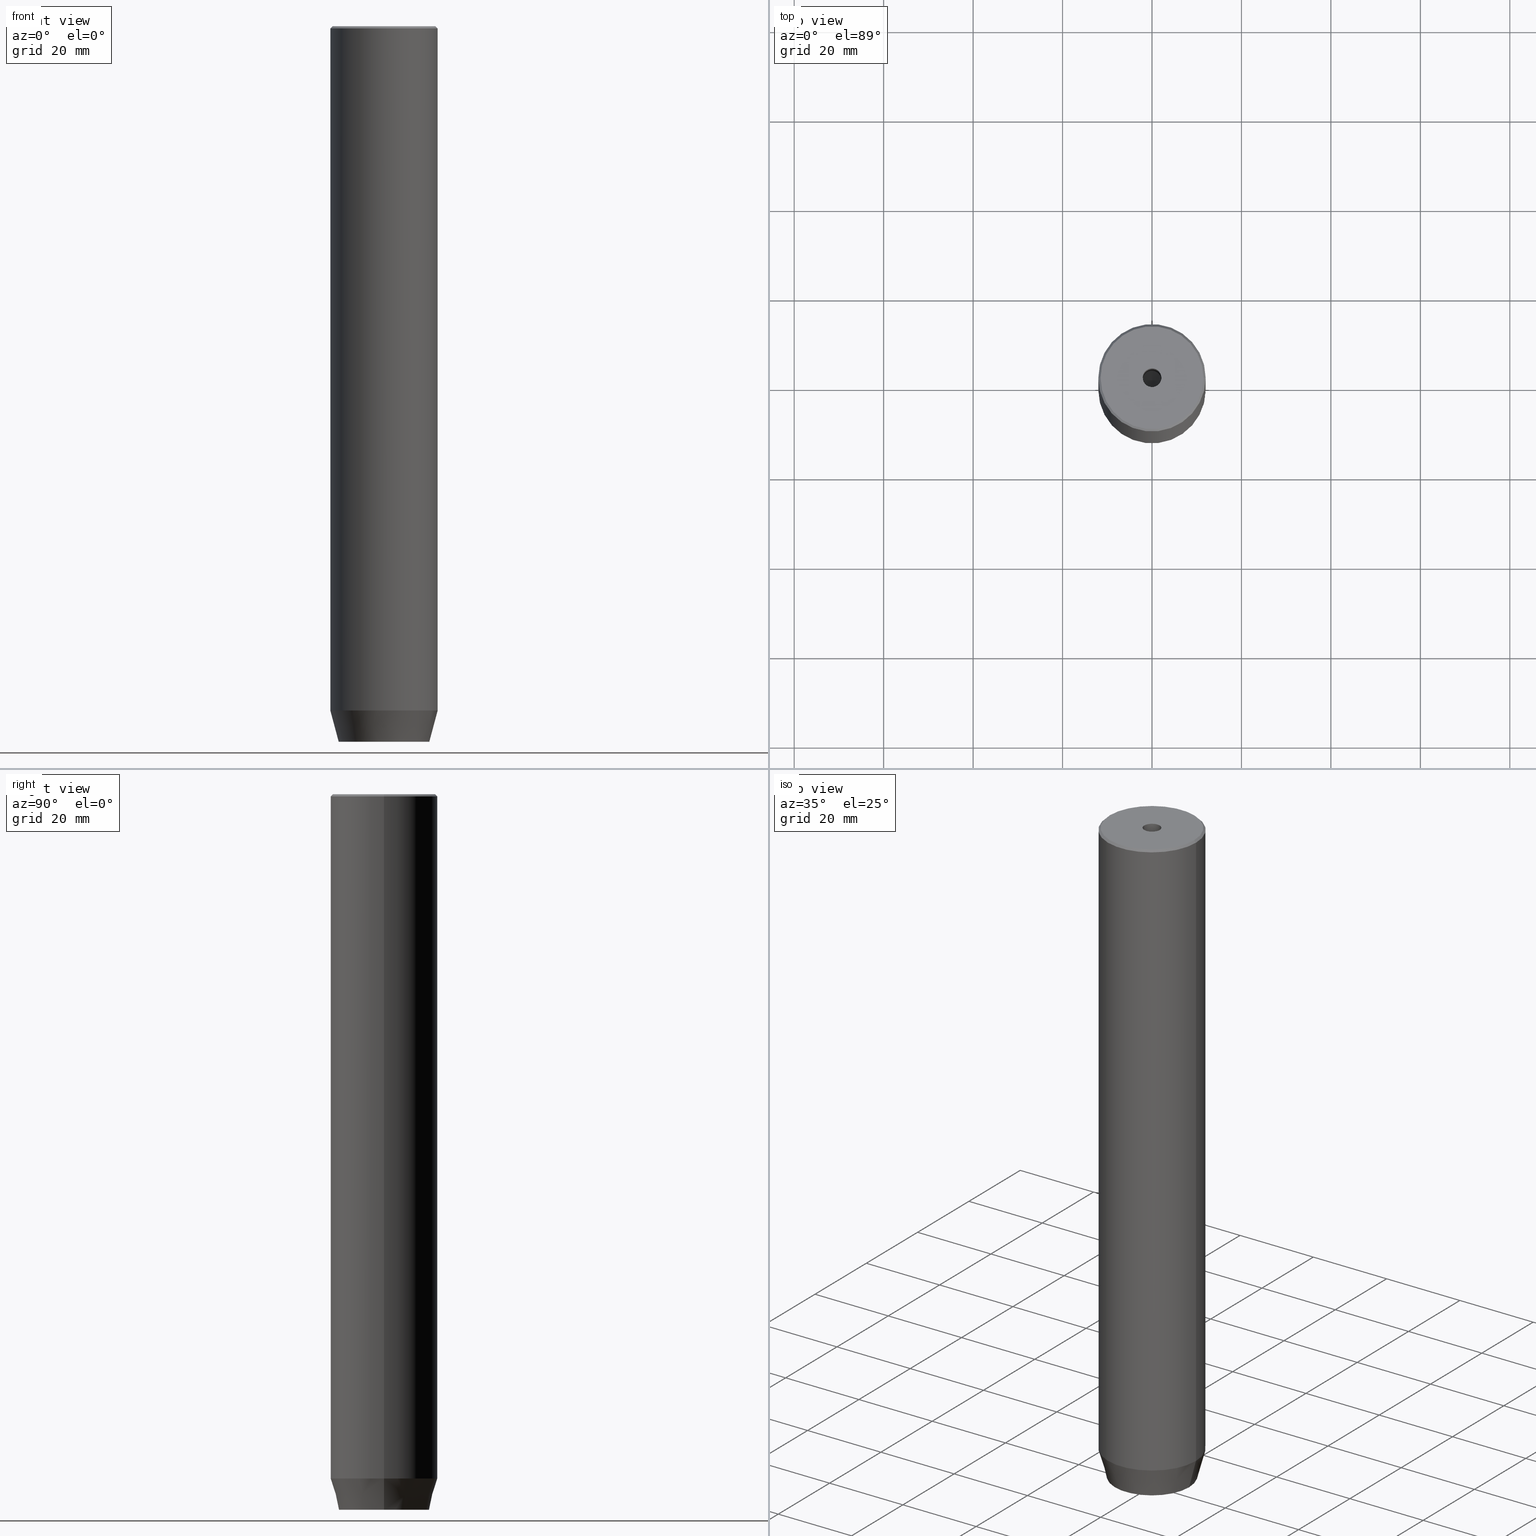
[diagram: canonical four-view strip — front | top / right | iso, engineering-drawing reading convention]
A machine part, canonical four-view strip (front | top / right | iso — engineering-drawing reading convention). The complete STEP part file that produces these views, byte-faithful:
ISO-10303-21;
HEADER;
FILE_DESCRIPTION (( 'STEP AP203' ),
    '1' );
FILE_NAME ('22c5.STEP',
    '2024-01-02T17:15:24',
    ( '' ),
    ( '' ),
    'SwSTEP 2.0',
    'SolidWorks 2019',
    '' );
FILE_SCHEMA (( 'CONFIG_CONTROL_DESIGN' ));
ENDSEC;

DATA;
#1 = ORIENTED_EDGE ( 'NONE', *, *, #222, .T. ) ;
#2 = EDGE_CURVE ( 'NONE', #234, #451, #333, .T. ) ;
#3 = PERSON_AND_ORGANIZATION_ROLE ( 'classification_officer' ) ;
#4 = AXIS2_PLACEMENT_3D ( 'NONE', #95, #8, #310 ) ;
#5 = CC_DESIGN_APPROVAL ( #446, ( #303 ) ) ;
#6 = EDGE_CURVE ( 'NONE', #458, #558, #79, .T. ) ;
#7 = ORIENTED_EDGE ( 'NONE', *, *, #267, .F. ) ;
#8 = DIRECTION ( 'NONE',  ( -1.000000000000000000, 0.000000000000000000, 0.000000000000000000 ) ) ;
#9 = EDGE_CURVE ( 'NONE', #199, #554, #257, .T. ) ;
#10 = EDGE_LOOP ( 'NONE', ( #500, #417, #93, #120 ) ) ;
#11 = CARTESIAN_POINT ( 'NONE',  ( 0.000000000000000000, 10.12435565298212836, -160.0000000000000000 ) ) ;
#12 = VERTEX_POINT ( 'NONE', #170 ) ;
#13 = CC_DESIGN_PERSON_AND_ORGANIZATION_ASSIGNMENT ( #125, #44, ( #303 ) ) ;
#14 = DIRECTION ( 'NONE',  ( 1.000000000000000000, 0.000000000000000000, 0.000000000000000000 ) ) ;
#15 = AXIS2_PLACEMENT_3D ( 'NONE', #511, #227, #17 ) ;
#16 = ORIENTED_EDGE ( 'NONE', *, *, #179, .F. ) ;
#17 = DIRECTION ( 'NONE',  ( 1.000000000000000000, 0.000000000000000000, 0.000000000000000000 ) ) ;
#18 = CARTESIAN_POINT ( 'NONE',  ( 0.000000000000000000, 0.000000000000000000, 0.000000000000000000 ) ) ;
#19 = ORIENTED_EDGE ( 'NONE', *, *, #516, .T. ) ;
#20 = LINE ( 'NONE', #509, #352 ) ;
#21 = CARTESIAN_POINT ( 'NONE',  ( 0.000000000000000000, 0.000000000000000000, 0.000000000000000000 ) ) ;
#22 = CIRCLE ( 'NONE', #155, 11.50000000000002309 ) ;
#23 = LOCAL_TIME ( 18, 15, 24.00000000000000000, #297 ) ;
#24 = CLOSED_SHELL ( 'NONE', ( #457, #207, #213, #169, #292, #411, #580, #400, #101, #232, #201, #322, #134, #196, #57, #138, #298, #564, #140 ) ) ;
#25 = ORIENTED_EDGE ( 'NONE', *, *, #212, .F. ) ;
#26 = CARTESIAN_POINT ( 'NONE',  ( 0.000000000000000000, 0.000000000000000000, -0.4999999999999779066 ) ) ;
#27 = CYLINDRICAL_SURFACE ( 'NONE', #185, 2.099999999999996980 ) ;
#28 = CARTESIAN_POINT ( 'NONE',  ( -7.656934449090954900E-15, 0.000000000000000000, -31.26180729995787289 ) ) ;
#29 = DIRECTION ( 'NONE',  ( 0.2588190451025212391, 0.000000000000000000, 0.9659258262890680902 ) ) ;
#30 = CARTESIAN_POINT ( 'NONE',  ( 0.000000000000000000, 0.000000000000000000, -30.00000000000000000 ) ) ;
#31 = CARTESIAN_POINT ( 'NONE',  ( -4.000000000000000000, -2.309401076758503368, -157.2000000000000171 ) ) ;
#32 = VECTOR ( 'NONE', #29, 1000.000000000000114 ) ;
#33 = CARTESIAN_POINT ( 'NONE',  ( 11.50000000000002309, 1.408343819019458937E-15, 0.000000000000000000 ) ) ;
#34 = FACE_OUTER_BOUND ( 'NONE', #203, .T. ) ;
#35 = LINE ( 'NONE', #62, #176 ) ;
#36 = PERSON_AND_ORGANIZATION ( #330, #281 ) ;
#37 = PRODUCT_DEFINITION ( 'NEZN�M�', '', #303, #225 ) ;
#38 = LINE ( 'NONE', #431, #445 ) ;
#39 = DATE_TIME_ROLE ( 'classification_date' ) ;
#40 = CC_DESIGN_APPROVAL ( #318, ( #37 ) ) ;
#41 = VECTOR ( 'NONE', #433, 1000.000000000000000 ) ;
#42 = SECURITY_CLASSIFICATION_LEVEL ( 'unclassified' ) ;
#43 = DIRECTION ( 'NONE',  ( 0.8660254037844387076, 0.5000000000000001110, 0.000000000000000000 ) ) ;
#44 = PERSON_AND_ORGANIZATION_ROLE ( 'design_supplier' ) ;
#45 = EDGE_LOOP ( 'NONE', ( #121, #98, #438, #160 ) ) ;
#46 = EDGE_LOOP ( 'NONE', ( #7, #61, #477 ) ) ;
#47 = DIRECTION ( 'NONE',  ( -0.000000000000000000, -0.000000000000000000, -1.000000000000000000 ) ) ;
#48 = CARTESIAN_POINT ( 'NONE',  ( 0.000000000000000000, 0.000000000000000000, 0.000000000000000000 ) ) ;
#49 = ORIENTED_EDGE ( 'NONE', *, *, #340, .F. ) ;
#50 = PRODUCT_DEFINITION_SHAPE ( 'NONE', 'NONE',  #37 ) ;
#51 = CARTESIAN_POINT ( 'NONE',  ( 2.000000000000000888, -3.464101615137754386, -157.2000000000000171 ) ) ;
#52 = VERTEX_POINT ( 'NONE', #441 ) ;
#53 = PLANE ( 'NONE',  #574 ) ;
#54 = ORIENTED_EDGE ( 'NONE', *, *, #112, .T. ) ;
#55 = VECTOR ( 'NONE', #565, 1000.000000000000000 ) ;
#56 = ORIENTED_EDGE ( 'NONE', *, *, #9, .F. ) ;
#57 = ADVANCED_FACE ( 'NONE', ( #168 ), #371, .F. ) ;
#58 = DIRECTION ( 'NONE',  ( -0.000000000000000000, -0.000000000000000000, -1.000000000000000000 ) ) ;
#59 = DIRECTION ( 'NONE',  ( 1.000000000000000000, 0.000000000000000000, 0.000000000000000000 ) ) ;
#60 = EDGE_CURVE ( 'NONE', #583, #458, #381, .T. ) ;
#61 = ORIENTED_EDGE ( 'NONE', *, *, #9, .T. ) ;
#62 = CARTESIAN_POINT ( 'NONE',  ( -4.000000000000000000, 0.000000000000000000, -160.0000000000000000 ) ) ;
#63 = LINE ( 'NONE', #244, #404 ) ;
#64 = EDGE_CURVE ( 'NONE', #226, #541, #582, .T. ) ;
#65 = AXIS2_PLACEMENT_3D ( 'NONE', #421, #424, #59 ) ;
#66 = PLANE ( 'NONE',  #65 ) ;
#67 = FACE_OUTER_BOUND ( 'NONE', #10, .T. ) ;
#68 = EDGE_CURVE ( 'NONE', #451, #108, #350, .T. ) ;
#69 = ORIENTED_EDGE ( 'NONE', *, *, #68, .T. ) ;
#70 = FACE_BOUND ( 'NONE', #432, .T. ) ;
#71 = DIRECTION ( 'NONE',  ( -0.5000000000000000000, 0.8660254037844387076, 0.000000000000000000 ) ) ;
#72 = VECTOR ( 'NONE', #456, 1000.000000000000114 ) ;
#73 = VECTOR ( 'NONE', #523, 1000.000000000000114 ) ;
#74 = COORDINATED_UNIVERSAL_TIME_OFFSET ( 1, 0, .AHEAD. ) ;
#75 = EDGE_CURVE ( 'NONE', #12, #240, #553, .T. ) ;
#76 = ORIENTED_EDGE ( 'NONE', *, *, #496, .F. ) ;
#77 = DIRECTION ( 'NONE',  ( 0.000000000000000000, 0.000000000000000000, 1.000000000000000000 ) ) ;
#78 = APPROVAL_ROLE ( '' ) ;
#79 = CIRCLE ( 'NONE', #341, 12.00000000000000000 ) ;
#80 = FACE_OUTER_BOUND ( 'NONE', #308, .T. ) ;
#81 = ORIENTED_EDGE ( 'NONE', *, *, #454, .T. ) ;
#82 = EDGE_CURVE ( 'NONE', #532, #320, #397, .T. ) ;
#83 = ORIENTED_EDGE ( 'NONE', *, *, #278, .T. ) ;
#84 = VECTOR ( 'NONE', #188, 1000.000000000000000 ) ;
#85 = CARTESIAN_POINT ( 'NONE',  ( 0.000000000000000000, 0.000000000000000000, 0.000000000000000000 ) ) ;
#86 = CC_DESIGN_PERSON_AND_ORGANIZATION_ASSIGNMENT ( #130, #127, ( #284 ) ) ;
#87 = ORIENTED_EDGE ( 'NONE', *, *, #309, .F. ) ;
#88 = CARTESIAN_POINT ( 'NONE',  ( 12.00000000000000000, 0.000000000000000000, -0.4999999999999779066 ) ) ;
#89 = UNCERTAINTY_MEASURE_WITH_UNIT (LENGTH_MEASURE( 1.000000000000000082E-05 ), #231, 'distance_accuracy_value', 'NONE');
#90 = EDGE_CURVE ( 'NONE', #108, #581, #35, .T. ) ;
#91 = ORIENTED_EDGE ( 'NONE', *, *, #488, .T. ) ;
#92 = DIRECTION ( 'NONE',  ( -0.8660254037844384856, 0.5000000000000002220, 0.000000000000000000 ) ) ;
#93 = ORIENTED_EDGE ( 'NONE', *, *, #398, .T. ) ;
#94 = DIRECTION ( 'NONE',  ( -0.000000000000000000, -0.000000000000000000, 1.000000000000000000 ) ) ;
#95 = CARTESIAN_POINT ( 'NONE',  ( -4.000000000000000000, 0.000000000000000000, -157.2000000000000171 ) ) ;
#96 = AXIS2_PLACEMENT_3D ( 'NONE', #116, #434, #475 ) ;
#97 = VECTOR ( 'NONE', #158, 1000.000000000000000 ) ;
#98 = ORIENTED_EDGE ( 'NONE', *, *, #548, .T. ) ;
#99 = CARTESIAN_POINT ( 'NONE',  ( 4.000000000000000000, 2.309401076758503368, -157.2000000000000171 ) ) ;
#100 = DIRECTION ( 'NONE',  ( -0.000000000000000000, -0.000000000000000000, 1.000000000000000000 ) ) ;
#101 = ADVANCED_FACE ( 'NONE', ( #104 ), #472, .T. ) ;
#102 = CARTESIAN_POINT ( 'NONE',  ( -2.099999999999996980, 2.571758278209438013E-16, 0.000000000000000000 ) ) ;
#103 = ORIENTED_EDGE ( 'NONE', *, *, #68, .F. ) ;
#104 = FACE_OUTER_BOUND ( 'NONE', #45, .T. ) ;
#105 = CARTESIAN_POINT ( 'NONE',  ( 2.099999999999994760, 0.000000000000000000, -30.00000000000000000 ) ) ;
#106 = CARTESIAN_POINT ( 'NONE',  ( 4.000000000000000000, 2.309401076758503368, -160.0000000000000000 ) ) ;
#107 = AXIS2_PLACEMENT_3D ( 'NONE', #416, #560, #14 ) ;
#108 = VERTEX_POINT ( 'NONE', #259 ) ;
#109 = CARTESIAN_POINT ( 'NONE',  ( 2.000000000000000888, -3.464101615137754386, -157.2000000000000171 ) ) ;
#110 = AXIS2_PLACEMENT_3D ( 'NONE', #384, #571, #113 ) ;
#111 = CARTESIAN_POINT ( 'NONE',  ( -2.099999999999994760, 2.571758278209435054E-16, -30.00000000000000000 ) ) ;
#112 = EDGE_CURVE ( 'NONE', #558, #458, #414, .T. ) ;
#113 = DIRECTION ( 'NONE',  ( 1.000000000000000000, 0.000000000000000000, 0.000000000000000000 ) ) ;
#114 = DIRECTION ( 'NONE',  ( -0.000000000000000000, -0.000000000000000000, 1.000000000000000000 ) ) ;
#115 = EDGE_LOOP ( 'NONE', ( #526, #54, #174, #83 ) ) ;
#116 = CARTESIAN_POINT ( 'NONE',  ( 0.000000000000000000, 0.000000000000000000, -160.0000000000000000 ) ) ;
#117 = DIRECTION ( 'NONE',  ( -0.000000000000000000, -0.000000000000000000, 1.000000000000000000 ) ) ;
#118 = VERTEX_POINT ( 'NONE', #401 ) ;
#119 = FACE_OUTER_BOUND ( 'NONE', #547, .T. ) ;
#120 = ORIENTED_EDGE ( 'NONE', *, *, #82, .T. ) ;
#121 = ORIENTED_EDGE ( 'NONE', *, *, #214, .F. ) ;
#122 =( GEOMETRIC_REPRESENTATION_CONTEXT ( 3 ) GLOBAL_UNCERTAINTY_ASSIGNED_CONTEXT ( ( #89 ) ) GLOBAL_UNIT_ASSIGNED_CONTEXT ( ( #231, #285, #161 ) ) REPRESENTATION_CONTEXT ( 'NONE', 'WORKASPACE' ) );
#123 = APPROVAL_STATUS ( 'not_yet_approved' ) ;
#124 = CARTESIAN_POINT ( 'NONE',  ( -2.000000000000000000, 3.464101615137754830, -157.2000000000000171 ) ) ;
#125 = PERSON_AND_ORGANIZATION ( #330, #281 ) ;
#126 = AXIS2_PLACEMENT_3D ( 'NONE', #484, #77, #394 ) ;
#127 = PERSON_AND_ORGANIZATION_ROLE ( 'design_owner' ) ;
#128 = CIRCLE ( 'NONE', #183, 12.00000000000000000 ) ;
#129 = ORIENTED_EDGE ( 'NONE', *, *, #419, .F. ) ;
#130 = PERSON_AND_ORGANIZATION ( #330, #281 ) ;
#131 = EDGE_LOOP ( 'NONE', ( #178, #171, #363, #156 ) ) ;
#132 = CARTESIAN_POINT ( 'NONE',  ( -2.000000000000000888, -3.464101615137754386, -157.2000000000000171 ) ) ;
#133 = DIRECTION ( 'NONE',  ( -0.000000000000000000, -0.000000000000000000, 1.000000000000000000 ) ) ;
#134 = ADVANCED_FACE ( 'NONE', ( #80 ), #135, .F. ) ;
#135 = PLANE ( 'NONE',  #314 ) ;
#136 = CARTESIAN_POINT ( 'NONE',  ( -4.000000000000000000, 2.309401076758503368, -157.2000000000000171 ) ) ;
#137 = DIRECTION ( 'NONE',  ( -0.000000000000000000, -0.000000000000000000, 1.000000000000000000 ) ) ;
#138 = ADVANCED_FACE ( 'NONE', ( #252 ), #335, .F. ) ;
#139 = DIRECTION ( 'NONE',  ( -0.000000000000000000, -0.000000000000000000, -1.000000000000000000 ) ) ;
#140 = ADVANCED_FACE ( 'NONE', ( #67 ), #27, .F. ) ;
#141 = DIRECTION ( 'NONE',  ( 0.8660254037844385966, -0.5000000000000001110, 0.000000000000000000 ) ) ;
#142 = DIRECTION ( 'NONE',  ( 0.000000000000000000, 0.000000000000000000, -1.000000000000000000 ) ) ;
#143 = AXIS2_PLACEMENT_3D ( 'NONE', #124, #71, #205 ) ;
#144 = DIRECTION ( 'NONE',  ( 0.000000000000000000, -1.000000000000000000, 0.000000000000000000 ) ) ;
#145 = CARTESIAN_POINT ( 'NONE',  ( 4.000000000000000000, 0.000000000000000000, -160.0000000000000000 ) ) ;
#146 = EDGE_LOOP ( 'NONE', ( #429, #129, #452, #219 ) ) ;
#147 = CC_DESIGN_PERSON_AND_ORGANIZATION_ASSIGNMENT ( #437, #498, ( #37 ) ) ;
#148 = ORIENTED_EDGE ( 'NONE', *, *, #393, .F. ) ;
#149 = DIRECTION ( 'NONE',  ( 0.8660254037844385966, -0.5000000000000001110, 0.000000000000000000 ) ) ;
#150 = DIRECTION ( 'NONE',  ( 0.8571673007021113344, 0.000000000000000000, 0.5150380749100558209 ) ) ;
#151 = LINE ( 'NONE', #428, #97 ) ;
#152 = CIRCLE ( 'NONE', #107, 2.099999999999998757 ) ;
#153 = EDGE_LOOP ( 'NONE', ( #274, #87, #159, #501 ) ) ;
#154 = CARTESIAN_POINT ( 'NONE',  ( 0.000000000000000000, 0.000000000000000000, -30.00000000000000000 ) ) ;
#155 = AXIS2_PLACEMENT_3D ( 'NONE', #85, #184, #230 ) ;
#156 = ORIENTED_EDGE ( 'NONE', *, *, #536, .F. ) ;
#157 = DIRECTION ( 'NONE',  ( -0.000000000000000000, -0.000000000000000000, 1.000000000000000000 ) ) ;
#158 = DIRECTION ( 'NONE',  ( -0.000000000000000000, -0.000000000000000000, 1.000000000000000000 ) ) ;
#159 = ORIENTED_EDGE ( 'NONE', *, *, #377, .F. ) ;
#160 = ORIENTED_EDGE ( 'NONE', *, *, #112, .F. ) ;
#161 =( NAMED_UNIT ( * ) SI_UNIT ( $, .STERADIAN. ) SOLID_ANGLE_UNIT ( ) );
#162 = DIRECTION ( 'NONE',  ( 1.000000000000000000, 0.000000000000000000, 0.000000000000000000 ) ) ;
#163 = APPROVAL_STATUS ( 'not_yet_approved' ) ;
#164 = DIRECTION ( 'NONE',  ( -0.8571673007021113344, 1.049727191138617463E-16, 0.5150380749100558209 ) ) ;
#165 = DIRECTION ( 'NONE',  ( 0.8660254037844384856, 0.5000000000000002220, 0.000000000000000000 ) ) ;
#166 = DIRECTION ( 'NONE',  ( -0.000000000000000000, -0.000000000000000000, 1.000000000000000000 ) ) ;
#167 = CALENDAR_DATE ( 2024, 2, 1 ) ;
#168 = FACE_OUTER_BOUND ( 'NONE', #331, .T. ) ;
#169 = ADVANCED_FACE ( 'NONE', ( #425 ), #514, .T. ) ;
#170 = CARTESIAN_POINT ( 'NONE',  ( 11.50000000000002309, 1.438959988998141541E-15, 0.000000000000000000 ) ) ;
#171 = ORIENTED_EDGE ( 'NONE', *, *, #569, .T. ) ;
#172 = FACE_OUTER_BOUND ( 'NONE', #131, .T. ) ;
#173 = APPLICATION_PROTOCOL_DEFINITION ( 'international standard', 'config_control_design', 1994, #577 ) ;
#174 = ORIENTED_EDGE ( 'NONE', *, *, #237, .T. ) ;
#175 = VECTOR ( 'NONE', #242, 1000.000000000000114 ) ;
#176 = VECTOR ( 'NONE', #235, 1000.000000000000000 ) ;
#177 = ORIENTED_EDGE ( 'NONE', *, *, #2, .F. ) ;
#178 = ORIENTED_EDGE ( 'NONE', *, *, #75, .F. ) ;
#179 = EDGE_CURVE ( 'NONE', #226, #108, #430, .T. ) ;
#180 = DIRECTION ( 'NONE',  ( 0.000000000000000000, 0.000000000000000000, -1.000000000000000000 ) ) ;
#181 = ORIENTED_EDGE ( 'NONE', *, *, #82, .F. ) ;
#182 = DIRECTION ( 'NONE',  ( 0.000000000000000000, 0.000000000000000000, -1.000000000000000000 ) ) ;
#183 = AXIS2_PLACEMENT_3D ( 'NONE', #26, #193, #379 ) ;
#184 = DIRECTION ( 'NONE',  ( -0.000000000000000000, -0.000000000000000000, 1.000000000000000000 ) ) ;
#185 = AXIS2_PLACEMENT_3D ( 'NONE', #243, #483, #439 ) ;
#186 = VERTEX_POINT ( 'NONE', #579 ) ;
#187 = LINE ( 'NONE', #373, #343 ) ;
#188 = DIRECTION ( 'NONE',  ( -0.000000000000000000, -0.000000000000000000, -1.000000000000000000 ) ) ;
#189 = DIRECTION ( 'NONE',  ( -0.000000000000000000, -0.000000000000000000, 1.000000000000000000 ) ) ;
#190 = EDGE_CURVE ( 'NONE', #277, #52, #524, .T. ) ;
#191 = LINE ( 'NONE', #376, #338 ) ;
#192 = AXIS2_PLACEMENT_3D ( 'NONE', #336, #241, #567 ) ;
#193 = DIRECTION ( 'NONE',  ( 0.000000000000000000, 0.000000000000000000, -1.000000000000000000 ) ) ;
#194 = ORIENTED_EDGE ( 'NONE', *, *, #419, .T. ) ;
#195 = CARTESIAN_POINT ( 'NONE',  ( -4.000000000000000000, 0.000000000000000000, -157.2000000000000171 ) ) ;
#196 = ADVANCED_FACE ( 'NONE', ( #239 ), #367, .F. ) ;
#197 = DIRECTION ( 'NONE',  ( 0.8660254037844387076, 0.5000000000000001110, 0.000000000000000000 ) ) ;
#198 = VERTEX_POINT ( 'NONE', #478 ) ;
#199 = VERTEX_POINT ( 'NONE', #28 ) ;
#200 = LINE ( 'NONE', #468, #538 ) ;
#201 = ADVANCED_FACE ( 'NONE', ( #34 ), #575, .F. ) ;
#202 = VECTOR ( 'NONE', #43, 999.9999999999998863 ) ;
#203 = EDGE_LOOP ( 'NONE', ( #353, #49, #319, #194 ) ) ;
#204 = DIRECTION ( 'NONE',  ( -0.2588190451025212391, 3.169619151431771721E-17, 0.9659258262890680902 ) ) ;
#205 = DIRECTION ( 'NONE',  ( -0.8660254037844385966, -0.4999999999999999445, 0.000000000000000000 ) ) ;
#206 = APPROVAL_STATUS ( 'not_yet_approved' ) ;
#207 = ADVANCED_FACE ( 'NONE', ( #270 ), #546, .F. ) ;
#208 = VECTOR ( 'NONE', #144, 1000.000000000000000 ) ;
#209 = LINE ( 'NONE', #313, #202 ) ;
#210 = DATE_TIME_ROLE ( 'creation_date' ) ;
#211 = DIRECTION ( 'NONE',  ( -1.000000000000000000, 0.000000000000000000, 0.000000000000000000 ) ) ;
#212 = EDGE_CURVE ( 'NONE', #581, #216, #209, .T. ) ;
#213 = ADVANCED_FACE ( 'NONE', ( #172 ), #368, .T. ) ;
#214 = EDGE_CURVE ( 'NONE', #198, #558, #38, .T. ) ;
#215 = AXIS2_PLACEMENT_3D ( 'NONE', #18, #412, #555 ) ;
#216 = VERTEX_POINT ( 'NONE', #470 ) ;
#217 = APPROVAL_PERSON_ORGANIZATION ( #36, #556, #391 ) ;
#218 = FACE_OUTER_BOUND ( 'NONE', #146, .T. ) ;
#219 = ORIENTED_EDGE ( 'NONE', *, *, #179, .T. ) ;
#220 = ORIENTED_EDGE ( 'NONE', *, *, #301, .F. ) ;
#221 = FACE_BOUND ( 'NONE', #460, .T. ) ;
#222 = EDGE_CURVE ( 'NONE', #554, #320, #522, .T. ) ;
#223 = ORIENTED_EDGE ( 'NONE', *, *, #60, .F. ) ;
#224 = LINE ( 'NONE', #132, #258 ) ;
#225 = DESIGN_CONTEXT ( 'detailed design', #395, 'design' ) ;
#226 = VERTEX_POINT ( 'NONE', #510 ) ;
#227 = DIRECTION ( 'NONE',  ( -0.000000000000000000, -0.000000000000000000, 1.000000000000000000 ) ) ;
#228 = DIRECTION ( 'NONE',  ( 1.000000000000000000, 0.000000000000000000, 0.000000000000000000 ) ) ;
#229 = CARTESIAN_POINT ( 'NONE',  ( 4.000000000000000000, 2.309401076758503368, -157.2000000000000171 ) ) ;
#230 = DIRECTION ( 'NONE',  ( 1.000000000000000000, 0.000000000000000000, 0.000000000000000000 ) ) ;
#231 =( LENGTH_UNIT ( ) NAMED_UNIT ( * ) SI_UNIT ( .MILLI., .METRE. ) );
#232 = ADVANCED_FACE ( 'NONE', ( #562 ), #531, .T. ) ;
#233 = ORIENTED_EDGE ( 'NONE', *, *, #90, .F. ) ;
#234 = VERTEX_POINT ( 'NONE', #570 ) ;
#235 = DIRECTION ( 'NONE',  ( 0.000000000000000000, 1.000000000000000000, 0.000000000000000000 ) ) ;
#236 = DIRECTION ( 'NONE',  ( 1.000000000000000000, 0.000000000000000000, 0.000000000000000000 ) ) ;
#237 = EDGE_CURVE ( 'NONE', #458, #334, #151, .T. ) ;
#238 = VECTOR ( 'NONE', #279, 1000.000000000000000 ) ;
#239 = FACE_OUTER_BOUND ( 'NONE', #413, .T. ) ;
#240 = VERTEX_POINT ( 'NONE', #476 ) ;
#241 = DIRECTION ( 'NONE',  ( -0.000000000000000000, -0.000000000000000000, 1.000000000000000000 ) ) ;
#242 = DIRECTION ( 'NONE',  ( 0.7071067811865474617, 8.659560562354932858E-17, -0.7071067811865474617 ) ) ;
#243 = CARTESIAN_POINT ( 'NONE',  ( 0.000000000000000000, 0.000000000000000000, 0.000000000000000000 ) ) ;
#244 = CARTESIAN_POINT ( 'NONE',  ( -11.50000000000002309, 0.000000000000000000, 0.000000000000000000 ) ) ;
#245 = ORIENTED_EDGE ( 'NONE', *, *, #290, .F. ) ;
#246 = DIRECTION ( 'NONE',  ( 0.5000000000000003331, -0.8660254037844385966, 0.000000000000000000 ) ) ;
#247 = CARTESIAN_POINT ( 'NONE',  ( 4.336808689942017736E-16, -4.618802153517006737, -157.2000000000000171 ) ) ;
#248 = CIRCLE ( 'NONE', #96, 10.12435565298212836 ) ;
#249 = AXIS2_PLACEMENT_3D ( 'NONE', #385, #542, #228 ) ;
#250 = DATE_AND_TIME ( #537, #481 ) ;
#251 = EDGE_CURVE ( 'NONE', #554, #528, #436, .T. ) ;
#252 = FACE_OUTER_BOUND ( 'NONE', #153, .T. ) ;
#253 = PERSON_AND_ORGANIZATION ( #330, #281 ) ;
#254 = ORIENTED_EDGE ( 'NONE', *, *, #255, .T. ) ;
#255 = EDGE_CURVE ( 'NONE', #528, #554, #482, .T. ) ;
#256 = SHAPE_DEFINITION_REPRESENTATION ( #50, #584 ) ;
#257 = LINE ( 'NONE', #486, #455 ) ;
#258 = VECTOR ( 'NONE', #92, 1000.000000000000114 ) ;
#259 = CARTESIAN_POINT ( 'NONE',  ( -4.000000000000000000, -2.309401076758503368, -160.0000000000000000 ) ) ;
#260 = APPROVAL_DATE_TIME ( #585, #556 ) ;
#261 = PERSON_AND_ORGANIZATION ( #330, #281 ) ;
#262 = ORIENTED_EDGE ( 'NONE', *, *, #536, .T. ) ;
#263 = DIRECTION ( 'NONE',  ( -1.000000000000000000, 0.000000000000000000, 0.000000000000000000 ) ) ;
#264 = AXIS2_PLACEMENT_3D ( 'NONE', #466, #180, #407 ) ;
#265 = CONICAL_SURFACE ( 'NONE', #552, 2.099999999999994760, 1.029744258676652535 ) ;
#266 = DIRECTION ( 'NONE',  ( 1.000000000000000000, 0.000000000000000000, 0.000000000000000000 ) ) ;
#267 = EDGE_CURVE ( 'NONE', #199, #528, #187, .T. ) ;
#268 = ORIENTED_EDGE ( 'NONE', *, *, #278, .F. ) ;
#269 = CYLINDRICAL_SURFACE ( 'NONE', #215, 12.00000000000000000 ) ;
#270 = FACE_OUTER_BOUND ( 'NONE', #46, .T. ) ;
#271 = CC_DESIGN_DATE_AND_TIME_ASSIGNMENT ( #250, #39, ( #326 ) ) ;
#272 = LINE ( 'NONE', #321, #415 ) ;
#273 = VERTEX_POINT ( 'NONE', #106 ) ;
#274 = ORIENTED_EDGE ( 'NONE', *, *, #496, .T. ) ;
#275 = FACE_OUTER_BOUND ( 'NONE', #355, .T. ) ;
#276 = PLANE ( 'NONE',  #264 ) ;
#277 = VERTEX_POINT ( 'NONE', #99 ) ;
#278 = EDGE_CURVE ( 'NONE', #334, #186, #356, .T. ) ;
#279 = DIRECTION ( 'NONE',  ( -0.000000000000000000, -0.000000000000000000, 1.000000000000000000 ) ) ;
#280 = DIRECTION ( 'NONE',  ( -0.7071067811865474617, 0.000000000000000000, -0.7071067811865474617 ) ) ;
#281 = ORGANIZATION ( 'NEUR�EN�', 'NEUR�EN�', '' ) ;
#282 = EDGE_LOOP ( 'NONE', ( #408, #505 ) ) ;
#283 = AXIS2_PLACEMENT_3D ( 'NONE', #557, #133, #406 ) ;
#284 = PRODUCT ( '22c5', '22c5', '', ( #402 ) ) ;
#285 =( NAMED_UNIT ( * ) PLANE_ANGLE_UNIT ( ) SI_UNIT ( $, .RADIAN. ) );
#286 = CARTESIAN_POINT ( 'NONE',  ( 0.000000000000000000, 0.000000000000000000, -152.9999999999999716 ) ) ;
#287 = CARTESIAN_POINT ( 'NONE',  ( 12.00000000000000000, 0.000000000000000000, -152.9999999999999716 ) ) ;
#288 = ORIENTED_EDGE ( 'NONE', *, *, #309, .T. ) ;
#289 = DIRECTION ( 'NONE',  ( -0.8660254037844385966, 0.5000000000000001110, 0.000000000000000000 ) ) ;
#290 = EDGE_CURVE ( 'NONE', #494, #226, #224, .T. ) ;
#291 = CARTESIAN_POINT ( 'NONE',  ( -4.000000000000000000, 2.309401076758503368, -160.0000000000000000 ) ) ;
#292 = ADVANCED_FACE ( 'NONE', ( #275 ), #269, .T. ) ;
#293 = CC_DESIGN_SECURITY_CLASSIFICATION ( #326, ( #303 ) ) ;
#294 = CARTESIAN_POINT ( 'NONE',  ( -2.000000000000000888, -3.464101615137754386, -160.0000000000000000 ) ) ;
#295 = CARTESIAN_POINT ( 'NONE',  ( 0.000000000000000000, 0.000000000000000000, -152.9999999999999716 ) ) ;
#296 = DATE_AND_TIME ( #167, #443 ) ;
#297 = COORDINATED_UNIVERSAL_TIME_OFFSET ( 1, 0, .AHEAD. ) ;
#298 = ADVANCED_FACE ( 'NONE', ( #561 ), #276, .T. ) ;
#299 = MANIFOLD_SOLID_BREP ( 'Vrt�k z�vitn�ku pro M5 z�vit1', #24 ) ;
#300 = DIRECTION ( 'NONE',  ( 1.000000000000000000, 0.000000000000000000, 0.000000000000000000 ) ) ;
#301 = EDGE_CURVE ( 'NONE', #52, #234, #461, .T. ) ;
#302 = APPROVAL_ROLE ( '' ) ;
#303 = PRODUCT_DEFINITION_FORMATION_WITH_SPECIFIED_SOURCE ( 'LIBOVOLN�', '', #284, .NOT_KNOWN. ) ;
#304 = VECTOR ( 'NONE', #566, 1000.000000000000114 ) ;
#305 = VECTOR ( 'NONE', #578, 1000.000000000000000 ) ;
#306 = CARTESIAN_POINT ( 'NONE',  ( 0.000000000000000000, 0.000000000000000000, 0.000000000000000000 ) ) ;
#307 = APPROVAL_DATE_TIME ( #543, #318 ) ;
#308 = EDGE_LOOP ( 'NONE', ( #69, #16, #245, #474 ) ) ;
#309 = EDGE_CURVE ( 'NONE', #277, #273, #464, .T. ) ;
#310 = DIRECTION ( 'NONE',  ( 0.000000000000000000, 0.000000000000000000, 1.000000000000000000 ) ) ;
#311 = APPROVAL_PERSON_ORGANIZATION ( #253, #318, #302 ) ;
#312 = ORIENTED_EDGE ( 'NONE', *, *, #290, .T. ) ;
#313 = CARTESIAN_POINT ( 'NONE',  ( -2.000000000000000000, 3.464101615137754830, -160.0000000000000000 ) ) ;
#314 = AXIS2_PLACEMENT_3D ( 'NONE', #316, #365, #506 ) ;
#315 = CARTESIAN_POINT ( 'NONE',  ( 0.000000000000000000, 0.000000000000000000, -1.990051048614449116E-16 ) ) ;
#316 = CARTESIAN_POINT ( 'NONE',  ( -2.000000000000000888, -3.464101615137754386, -157.2000000000000171 ) ) ;
#317 = CARTESIAN_POINT ( 'NONE',  ( 0.000000000000000000, 4.618802153517006737, -157.2000000000000171 ) ) ;
#318 = APPROVAL ( #123, 'NEUR�EN�' ) ;
#319 = ORIENTED_EDGE ( 'NONE', *, *, #516, .F. ) ;
#320 = VERTEX_POINT ( 'NONE', #369 ) ;
#321 = CARTESIAN_POINT ( 'NONE',  ( 4.336808689942017736E-16, -4.618802153517006737, -157.2000000000000171 ) ) ;
#322 = ADVANCED_FACE ( 'NONE', ( #218 ), #372, .F. ) ;
#323 = ORIENTED_EDGE ( 'NONE', *, *, #569, .F. ) ;
#324 = CARTESIAN_POINT ( 'NONE',  ( 2.000000000000000444, 3.464101615137754386, -157.2000000000000171 ) ) ;
#325 = VECTOR ( 'NONE', #58, 1000.000000000000000 ) ;
#326 = SECURITY_CLASSIFICATION ( '', '', #42 ) ;
#327 = CARTESIAN_POINT ( 'NONE',  ( 4.000000000000000000, -2.309401076758502480, -157.2000000000000171 ) ) ;
#328 = AXIS2_PLACEMENT_3D ( 'NONE', #154, #114, #162 ) ;
#329 = CARTESIAN_POINT ( 'NONE',  ( -2.000000000000000000, 3.464101615137754830, -157.2000000000000171 ) ) ;
#330 = PERSON ( 'NEUR�EN�', 'NEUR�EN�', 'NEUR�EN�', ('NEUR�EN�'), ('NEUR�EN�'), ('NEUR�EN�') ) ;
#331 = EDGE_LOOP ( 'NONE', ( #487, #220, #493, #288 ) ) ;
#332 = DIRECTION ( 'NONE',  ( 1.000000000000000000, 0.000000000000000000, 0.000000000000000000 ) ) ;
#333 = LINE ( 'NONE', #518, #73 ) ;
#334 = VERTEX_POINT ( 'NONE', #88 ) ;
#335 = PLANE ( 'NONE',  #539 ) ;
#336 = CARTESIAN_POINT ( 'NONE',  ( 0.000000000000000000, 0.000000000000000000, -152.9999999999999716 ) ) ;
#337 = LINE ( 'NONE', #145, #55 ) ;
#338 = VECTOR ( 'NONE', #149, 1000.000000000000000 ) ;
#339 = PRODUCT_RELATED_PRODUCT_CATEGORY ( 'detail', '', ( #284 ) ) ;
#340 = EDGE_CURVE ( 'NONE', #118, #216, #507, .T. ) ;
#341 = AXIS2_PLACEMENT_3D ( 'NONE', #286, #117, #300 ) ;
#342 = ORIENTED_EDGE ( 'NONE', *, *, #382, .T. ) ;
#343 = VECTOR ( 'NONE', #150, 1000.000000000000000 ) ;
#344 = ORIENTED_EDGE ( 'NONE', *, *, #267, .T. ) ;
#345 = DIRECTION ( 'NONE',  ( 1.000000000000000000, 0.000000000000000000, 0.000000000000000000 ) ) ;
#346 = CARTESIAN_POINT ( 'NONE',  ( 4.336808689942017736E-16, -4.618802153517006737, -160.0000000000000000 ) ) ;
#347 = ORIENTED_EDGE ( 'NONE', *, *, #364, .T. ) ;
#348 = DIRECTION ( 'NONE',  ( 0.5000000000000001110, 0.8660254037844385966, -0.000000000000000000 ) ) ;
#349 = CC_DESIGN_PERSON_AND_ORGANIZATION_ASSIGNMENT ( #360, #3, ( #326 ) ) ;
#350 = LINE ( 'NONE', #294, #304 ) ;
#351 = COORDINATED_UNIVERSAL_TIME_OFFSET ( 1, 0, .AHEAD. ) ;
#352 = VECTOR ( 'NONE', #189, 1000.000000000000000 ) ;
#353 = ORIENTED_EDGE ( 'NONE', *, *, #212, .T. ) ;
#354 = COORDINATED_UNIVERSAL_TIME_OFFSET ( 1, 0, .AHEAD. ) ;
#355 = EDGE_LOOP ( 'NONE', ( #473, #91, #545, #358 ) ) ;
#356 = CIRCLE ( 'NONE', #479, 12.00000000000000000 ) ;
#357 = AXIS2_PLACEMENT_3D ( 'NONE', #48, #142, #263 ) ;
#358 = ORIENTED_EDGE ( 'NONE', *, *, #237, .F. ) ;
#359 = VECTOR ( 'NONE', #139, 1000.000000000000000 ) ;
#360 = PERSON_AND_ORGANIZATION ( #330, #281 ) ;
#361 = ORIENTED_EDGE ( 'NONE', *, *, #548, .F. ) ;
#362 = FACE_OUTER_BOUND ( 'NONE', #115, .T. ) ;
#363 = ORIENTED_EDGE ( 'NONE', *, *, #447, .F. ) ;
#364 = EDGE_CURVE ( 'NONE', #320, #532, #152, .T. ) ;
#365 = DIRECTION ( 'NONE',  ( -0.5000000000000003331, -0.8660254037844385966, 0.000000000000000000 ) ) ;
#366 = DIRECTION ( 'NONE',  ( -1.000000000000000000, 0.000000000000000000, -0.000000000000000000 ) ) ;
#367 = PLANE ( 'NONE',  #387 ) ;
#368 = CONICAL_SURFACE ( 'NONE', #504, 11.50000000000002309, 0.7853981633974482790 ) ;
#369 = CARTESIAN_POINT ( 'NONE',  ( -2.099999999999998757, 2.571758278209440478E-16, -1.990051048614449116E-16 ) ) ;
#370 = ORIENTED_EDGE ( 'NONE', *, *, #398, .F. ) ;
#371 = PLANE ( 'NONE',  #586 ) ;
#372 = PLANE ( 'NONE',  #4 ) ;
#373 = CARTESIAN_POINT ( 'NONE',  ( 2.099999999999994760, 0.000000000000000000, -30.00000000000000000 ) ) ;
#374 = CARTESIAN_POINT ( 'NONE',  ( 0.000000000000000000, 0.000000000000000000, -0.4999999999999779066 ) ) ;
#375 = AXIS2_PLACEMENT_3D ( 'NONE', #573, #527, #345 ) ;
#376 = CARTESIAN_POINT ( 'NONE',  ( 2.000000000000000444, 3.464101615137754386, -160.0000000000000000 ) ) ;
#377 = EDGE_CURVE ( 'NONE', #118, #277, #503, .T. ) ;
#378 = CARTESIAN_POINT ( 'NONE',  ( 4.000000000000000000, 0.000000000000000000, -157.2000000000000171 ) ) ;
#379 = DIRECTION ( 'NONE',  ( 1.000000000000000000, 0.000000000000000000, 0.000000000000000000 ) ) ;
#380 = ORIENTED_EDGE ( 'NONE', *, *, #364, .F. ) ;
#381 = LINE ( 'NONE', #426, #32 ) ;
#382 = EDGE_CURVE ( 'NONE', #52, #494, #459, .T. ) ;
#383 = DIRECTION ( 'NONE',  ( -0.000000000000000000, -0.000000000000000000, 1.000000000000000000 ) ) ;
#384 = CARTESIAN_POINT ( 'NONE',  ( 0.000000000000000000, 0.000000000000000000, -152.9999999999999716 ) ) ;
#385 = CARTESIAN_POINT ( 'NONE',  ( 0.000000000000000000, 0.000000000000000000, 0.000000000000000000 ) ) ;
#386 = CYLINDRICAL_SURFACE ( 'NONE', #435, 2.099999999999996980 ) ;
#387 = AXIS2_PLACEMENT_3D ( 'NONE', #109, #246, #165 ) ;
#388 = EDGE_LOOP ( 'NONE', ( #489, #361 ) ) ;
#389 = DIRECTION ( 'NONE',  ( 1.000000000000000000, 0.000000000000000000, 0.000000000000000000 ) ) ;
#390 = LINE ( 'NONE', #329, #492 ) ;
#391 = APPROVAL_ROLE ( '' ) ;
#392 = EDGE_LOOP ( 'NONE', ( #19, #467, #410, #342, #312, #508 ) ) ;
#393 = EDGE_CURVE ( 'NONE', #240, #12, #22, .T. ) ;
#394 = DIRECTION ( 'NONE',  ( 1.000000000000000000, 0.000000000000000000, 0.000000000000000000 ) ) ;
#395 = APPLICATION_CONTEXT ( 'configuration controlled 3d designs of mechanical parts and assemblies' ) ;
#396 = EDGE_LOOP ( 'NONE', ( #323, #148, #262, #268 ) ) ;
#397 = CIRCLE ( 'NONE', #572, 2.099999999999998757 ) ;
#398 = EDGE_CURVE ( 'NONE', #528, #532, #20, .T. ) ;
#399 = CALENDAR_DATE ( 2024, 2, 1 ) ;
#400 = ADVANCED_FACE ( 'NONE', ( #362 ), #550, .T. ) ;
#401 = CARTESIAN_POINT ( 'NONE',  ( 0.000000000000000000, 4.618802153517006737, -157.2000000000000171 ) ) ;
#402 = MECHANICAL_CONTEXT ( 'NONE', #577, 'mechanical' ) ;
#403 = DATE_AND_TIME ( #540, #544 ) ;
#404 = VECTOR ( 'NONE', #280, 1000.000000000000114 ) ;
#405 = EDGE_CURVE ( 'NONE', #494, #451, #272, .T. ) ;
#406 = DIRECTION ( 'NONE',  ( 1.000000000000000000, 0.000000000000000000, 0.000000000000000000 ) ) ;
#407 = DIRECTION ( 'NONE',  ( -1.000000000000000000, 0.000000000000000000, -0.000000000000000000 ) ) ;
#408 = ORIENTED_EDGE ( 'NONE', *, *, #393, .T. ) ;
#409 = FACE_OUTER_BOUND ( 'NONE', #388, .T. ) ;
#410 = ORIENTED_EDGE ( 'NONE', *, *, #190, .T. ) ;
#411 = ADVANCED_FACE ( 'NONE', ( #221, #409 ), #53, .T. ) ;
#412 = DIRECTION ( 'NONE',  ( -0.000000000000000000, -0.000000000000000000, 1.000000000000000000 ) ) ;
#413 = EDGE_LOOP ( 'NONE', ( #499, #512, #462, #576 ) ) ;
#414 = CIRCLE ( 'NONE', #495, 12.00000000000000000 ) ;
#415 = VECTOR ( 'NONE', #47, 1000.000000000000000 ) ;
#416 = CARTESIAN_POINT ( 'NONE',  ( 0.000000000000000000, 0.000000000000000000, -1.990051048614449116E-16 ) ) ;
#417 = ORIENTED_EDGE ( 'NONE', *, *, #255, .F. ) ;
#418 = DIRECTION ( 'NONE',  ( 0.000000000000000000, 0.000000000000000000, -1.000000000000000000 ) ) ;
#419 = EDGE_CURVE ( 'NONE', #541, #581, #551, .T. ) ;
#420 = APPROVAL_PERSON_ORGANIZATION ( #261, #446, #78 ) ;
#421 = CARTESIAN_POINT ( 'NONE',  ( 0.000000000000000000, 0.000000000000000000, 0.000000000000000000 ) ) ;
#422 = VECTOR ( 'NONE', #449, 1000.000000000000000 ) ;
#423 = EDGE_LOOP ( 'NONE', ( #56, #344, #254 ) ) ;
#424 = DIRECTION ( 'NONE',  ( 0.000000000000000000, -0.000000000000000000, 1.000000000000000000 ) ) ;
#425 = FACE_OUTER_BOUND ( 'NONE', #587, .T. ) ;
#426 = CARTESIAN_POINT ( 'NONE',  ( 12.00000000000000000, 0.000000000000000000, -152.9999999999999716 ) ) ;
#427 = CARTESIAN_POINT ( 'NONE',  ( -12.00000000000000000, 1.469576158976823947E-15, -152.9999999999999716 ) ) ;
#428 = CARTESIAN_POINT ( 'NONE',  ( 12.00000000000000000, 0.000000000000000000, 0.000000000000000000 ) ) ;
#429 = ORIENTED_EDGE ( 'NONE', *, *, #90, .T. ) ;
#430 = LINE ( 'NONE', #31, #422 ) ;
#431 = CARTESIAN_POINT ( 'NONE',  ( -12.00000000000000000, 1.469576158976823947E-15, -152.9999999999999716 ) ) ;
#432 = EDGE_LOOP ( 'NONE', ( #181, #380 ) ) ;
#433 = DIRECTION ( 'NONE',  ( 0.000000000000000000, 1.000000000000000000, 0.000000000000000000 ) ) ;
#434 = DIRECTION ( 'NONE',  ( -0.000000000000000000, -0.000000000000000000, 1.000000000000000000 ) ) ;
#435 = AXIS2_PLACEMENT_3D ( 'NONE', #21, #157, #332 ) ;
#436 = CIRCLE ( 'NONE', #328, 2.099999999999994760 ) ;
#437 = PERSON_AND_ORGANIZATION ( #330, #281 ) ;
#438 = ORIENTED_EDGE ( 'NONE', *, *, #60, .T. ) ;
#439 = DIRECTION ( 'NONE',  ( 1.000000000000000000, 0.000000000000000000, 0.000000000000000000 ) ) ;
#440 = COORDINATED_UNIVERSAL_TIME_OFFSET ( 1, 0, .AHEAD. ) ;
#441 = CARTESIAN_POINT ( 'NONE',  ( 4.000000000000000000, -2.309401076758502480, -157.2000000000000171 ) ) ;
#442 = DIRECTION ( 'NONE',  ( 1.000000000000000000, 0.000000000000000000, 0.000000000000000000 ) ) ;
#443 = LOCAL_TIME ( 18, 15, 24.00000000000000000, #351 ) ;
#444 = ORIENTED_EDGE ( 'NONE', *, *, #214, .T. ) ;
#445 = VECTOR ( 'NONE', #204, 1000.000000000000114 ) ;
#446 = APPROVAL ( #163, 'NEUR�EN�' ) ;
#447 = EDGE_CURVE ( 'NONE', #186, #334, #128, .T. ) ;
#448 = PERSON_AND_ORGANIZATION_ROLE ( 'creator' ) ;
#449 = DIRECTION ( 'NONE',  ( -0.000000000000000000, -0.000000000000000000, -1.000000000000000000 ) ) ;
#450 = APPLICATION_PROTOCOL_DEFINITION ( 'international standard', 'config_control_design', 1994, #395 ) ;
#451 = VERTEX_POINT ( 'NONE', #346 ) ;
#452 = ORIENTED_EDGE ( 'NONE', *, *, #64, .F. ) ;
#453 = CC_DESIGN_DATE_AND_TIME_ASSIGNMENT ( #296, #210, ( #37 ) ) ;
#454 = EDGE_CURVE ( 'NONE', #583, #198, #529, .T. ) ;
#455 = VECTOR ( 'NONE', #164, 1000.000000000000000 ) ;
#456 = DIRECTION ( 'NONE',  ( -0.8660254037844384856, -0.5000000000000002220, 0.000000000000000000 ) ) ;
#457 = ADVANCED_FACE ( 'NONE', ( #119 ), #386, .F. ) ;
#458 = VERTEX_POINT ( 'NONE', #287 ) ;
#459 = LINE ( 'NONE', #51, #72 ) ;
#460 = EDGE_LOOP ( 'NONE', ( #25, #233, #103, #177, #515, #76 ) ) ;
#461 = LINE ( 'NONE', #327, #84 ) ;
#462 = ORIENTED_EDGE ( 'NONE', *, *, #382, .F. ) ;
#463 = LOCAL_TIME ( 18, 15, 24.00000000000000000, #354 ) ;
#464 = LINE ( 'NONE', #229, #359 ) ;
#465 = CARTESIAN_POINT ( 'NONE',  ( 4.000000000000000000, 0.000000000000000000, -157.2000000000000171 ) ) ;
#466 = CARTESIAN_POINT ( 'NONE',  ( 0.000000000000000000, 0.000000000000000000, -157.2000000000000171 ) ) ;
#467 = ORIENTED_EDGE ( 'NONE', *, *, #377, .T. ) ;
#468 = CARTESIAN_POINT ( 'NONE',  ( -12.00000000000000000, 1.469576158976823947E-15, 0.000000000000000000 ) ) ;
#469 = ORIENTED_EDGE ( 'NONE', *, *, #251, .F. ) ;
#470 = CARTESIAN_POINT ( 'NONE',  ( -4.336808689942017736E-16, 4.618802153517006737, -160.0000000000000000 ) ) ;
#471 = LINE ( 'NONE', #33, #175 ) ;
#472 = CONICAL_SURFACE ( 'NONE', #192, 12.00000000000000000, 0.2617993877991499629 ) ;
#473 = ORIENTED_EDGE ( 'NONE', *, *, #6, .T. ) ;
#474 = ORIENTED_EDGE ( 'NONE', *, *, #405, .T. ) ;
#475 = DIRECTION ( 'NONE',  ( 1.000000000000000000, 0.000000000000000000, 0.000000000000000000 ) ) ;
#476 = CARTESIAN_POINT ( 'NONE',  ( -11.50000000000002309, 0.000000000000000000, 0.000000000000000000 ) ) ;
#477 = ORIENTED_EDGE ( 'NONE', *, *, #251, .T. ) ;
#478 = CARTESIAN_POINT ( 'NONE',  ( -10.12435565298212836, 1.354726066681110655E-15, -160.0000000000000000 ) ) ;
#479 = AXIS2_PLACEMENT_3D ( 'NONE', #374, #418, #513 ) ;
#480 = APPROVAL_DATE_TIME ( #403, #446 ) ;
#481 = LOCAL_TIME ( 18, 15, 24.00000000000000000, #74 ) ;
#482 = CIRCLE ( 'NONE', #15, 2.099999999999994760 ) ;
#483 = DIRECTION ( 'NONE',  ( -0.000000000000000000, -0.000000000000000000, 1.000000000000000000 ) ) ;
#484 = CARTESIAN_POINT ( 'NONE',  ( 0.000000000000000000, 0.000000000000000000, 0.000000000000000000 ) ) ;
#485 = CALENDAR_DATE ( 2024, 2, 1 ) ;
#486 = CARTESIAN_POINT ( 'NONE',  ( -2.099999999999994760, 2.571758278209435054E-16, -30.00000000000000000 ) ) ;
#487 = ORIENTED_EDGE ( 'NONE', *, *, #520, .T. ) ;
#488 = EDGE_CURVE ( 'NONE', #558, #186, #200, .T. ) ;
#489 = ORIENTED_EDGE ( 'NONE', *, *, #454, .F. ) ;
#490 = PERSON_AND_ORGANIZATION ( #330, #281 ) ;
#491 = VECTOR ( 'NONE', #141, 1000.000000000000000 ) ;
#492 = VECTOR ( 'NONE', #197, 999.9999999999998863 ) ;
#493 = ORIENTED_EDGE ( 'NONE', *, *, #190, .F. ) ;
#494 = VERTEX_POINT ( 'NONE', #247 ) ;
#495 = AXIS2_PLACEMENT_3D ( 'NONE', #295, #166, #442 ) ;
#496 = EDGE_CURVE ( 'NONE', #216, #273, #191, .T. ) ;
#497 = AXIS2_PLACEMENT_3D ( 'NONE', #517, #137, #266 ) ;
#498 = PERSON_AND_ORGANIZATION_ROLE ( 'creator' ) ;
#499 = ORIENTED_EDGE ( 'NONE', *, *, #2, .T. ) ;
#500 = ORIENTED_EDGE ( 'NONE', *, *, #222, .F. ) ;
#501 = ORIENTED_EDGE ( 'NONE', *, *, #340, .T. ) ;
#502 = DIRECTION ( 'NONE',  ( 0.000000000000000000, 0.000000000000000000, -1.000000000000000000 ) ) ;
#503 = LINE ( 'NONE', #324, #491 ) ;
#504 = AXIS2_PLACEMENT_3D ( 'NONE', #306, #502, #211 ) ;
#505 = ORIENTED_EDGE ( 'NONE', *, *, #75, .T. ) ;
#506 = DIRECTION ( 'NONE',  ( 0.8660254037844384856, -0.5000000000000002220, 0.000000000000000000 ) ) ;
#507 = LINE ( 'NONE', #317, #325 ) ;
#508 = ORIENTED_EDGE ( 'NONE', *, *, #64, .T. ) ;
#509 = CARTESIAN_POINT ( 'NONE',  ( 2.099999999999996980, 0.000000000000000000, 0.000000000000000000 ) ) ;
#510 = CARTESIAN_POINT ( 'NONE',  ( -4.000000000000000000, -2.309401076758503368, -157.2000000000000171 ) ) ;
#511 = CARTESIAN_POINT ( 'NONE',  ( 0.000000000000000000, 0.000000000000000000, -30.00000000000000000 ) ) ;
#512 = ORIENTED_EDGE ( 'NONE', *, *, #405, .F. ) ;
#513 = DIRECTION ( 'NONE',  ( 1.000000000000000000, 0.000000000000000000, 0.000000000000000000 ) ) ;
#514 = CONICAL_SURFACE ( 'NONE', #110, 12.00000000000000000, 0.2617993877991499629 ) ;
#515 = ORIENTED_EDGE ( 'NONE', *, *, #520, .F. ) ;
#516 = EDGE_CURVE ( 'NONE', #541, #118, #390, .T. ) ;
#517 = CARTESIAN_POINT ( 'NONE',  ( 0.000000000000000000, 0.000000000000000000, 0.000000000000000000 ) ) ;
#518 = CARTESIAN_POINT ( 'NONE',  ( 2.000000000000000888, -3.464101615137754386, -160.0000000000000000 ) ) ;
#519 = CC_DESIGN_PERSON_AND_ORGANIZATION_ASSIGNMENT ( #490, #448, ( #303 ) ) ;
#520 = EDGE_CURVE ( 'NONE', #273, #234, #337, .T. ) ;
#521 = CARTESIAN_POINT ( 'NONE',  ( -4.000000000000000000, 2.309401076758503368, -157.2000000000000171 ) ) ;
#522 = LINE ( 'NONE', #102, #238 ) ;
#523 = DIRECTION ( 'NONE',  ( -0.8660254037844384856, -0.5000000000000002220, 0.000000000000000000 ) ) ;
#524 = LINE ( 'NONE', #465, #208 ) ;
#525 = DIRECTION ( 'NONE',  ( 1.000000000000000000, 0.000000000000000000, -0.000000000000000000 ) ) ;
#526 = ORIENTED_EDGE ( 'NONE', *, *, #488, .F. ) ;
#527 = DIRECTION ( 'NONE',  ( -0.000000000000000000, -0.000000000000000000, 1.000000000000000000 ) ) ;
#528 = VERTEX_POINT ( 'NONE', #105 ) ;
#529 = CIRCLE ( 'NONE', #375, 10.12435565298212836 ) ;
#530 = FACE_OUTER_BOUND ( 'NONE', #423, .T. ) ;
#531 = CONICAL_SURFACE ( 'NONE', #357, 11.50000000000002309, 0.7853981633974482790 ) ;
#532 = VERTEX_POINT ( 'NONE', #533 ) ;
#533 = CARTESIAN_POINT ( 'NONE',  ( 2.099999999999998757, 0.000000000000000000, -1.990051048614449116E-16 ) ) ;
#534 = CARTESIAN_POINT ( 'NONE',  ( 2.000000000000000444, 3.464101615137754386, -157.2000000000000171 ) ) ;
#535 = FACE_OUTER_BOUND ( 'NONE', #282, .T. ) ;
#536 = EDGE_CURVE ( 'NONE', #240, #186, #63, .T. ) ;
#537 = CALENDAR_DATE ( 2024, 2, 1 ) ;
#538 = VECTOR ( 'NONE', #383, 1000.000000000000000 ) ;
#539 = AXIS2_PLACEMENT_3D ( 'NONE', #534, #348, #289 ) ;
#540 = CALENDAR_DATE ( 2024, 2, 1 ) ;
#541 = VERTEX_POINT ( 'NONE', #521 ) ;
#542 = DIRECTION ( 'NONE',  ( -0.000000000000000000, -0.000000000000000000, 1.000000000000000000 ) ) ;
#543 = DATE_AND_TIME ( #399, #463 ) ;
#544 = LOCAL_TIME ( 18, 15, 24.00000000000000000, #440 ) ;
#545 = ORIENTED_EDGE ( 'NONE', *, *, #447, .T. ) ;
#546 = CONICAL_SURFACE ( 'NONE', #283, 2.099999999999994760, 1.029744258676652535 ) ;
#547 = EDGE_LOOP ( 'NONE', ( #469, #1, #347, #370 ) ) ;
#548 = EDGE_CURVE ( 'NONE', #198, #583, #248, .T. ) ;
#549 = ORIENTED_EDGE ( 'NONE', *, *, #6, .F. ) ;
#550 = CYLINDRICAL_SURFACE ( 'NONE', #497, 12.00000000000000000 ) ;
#551 = LINE ( 'NONE', #136, #305 ) ;
#552 = AXIS2_PLACEMENT_3D ( 'NONE', #30, #100, #236 ) ;
#553 = CIRCLE ( 'NONE', #249, 11.50000000000002309 ) ;
#554 = VERTEX_POINT ( 'NONE', #111 ) ;
#555 = DIRECTION ( 'NONE',  ( 1.000000000000000000, 0.000000000000000000, 0.000000000000000000 ) ) ;
#556 = APPROVAL ( #206, 'NEUR�EN�' ) ;
#557 = CARTESIAN_POINT ( 'NONE',  ( 0.000000000000000000, 0.000000000000000000, -30.00000000000000000 ) ) ;
#558 = VERTEX_POINT ( 'NONE', #427 ) ;
#559 = DIRECTION ( 'NONE',  ( -0.000000000000000000, 0.000000000000000000, -1.000000000000000000 ) ) ;
#560 = DIRECTION ( 'NONE',  ( -0.000000000000000000, -0.000000000000000000, 1.000000000000000000 ) ) ;
#561 = FACE_OUTER_BOUND ( 'NONE', #392, .T. ) ;
#562 = FACE_OUTER_BOUND ( 'NONE', #396, .T. ) ;
#563 = CC_DESIGN_APPROVAL ( #556, ( #326 ) ) ;
#564 = ADVANCED_FACE ( 'NONE', ( #530 ), #265, .F. ) ;
#565 = DIRECTION ( 'NONE',  ( 0.000000000000000000, -1.000000000000000000, 0.000000000000000000 ) ) ;
#566 = DIRECTION ( 'NONE',  ( -0.8660254037844384856, 0.5000000000000002220, 0.000000000000000000 ) ) ;
#567 = DIRECTION ( 'NONE',  ( 1.000000000000000000, 0.000000000000000000, 0.000000000000000000 ) ) ;
#568 = CARTESIAN_POINT ( 'NONE',  ( 10.12435565298212836, 0.000000000000000000, -160.0000000000000000 ) ) ;
#569 = EDGE_CURVE ( 'NONE', #12, #334, #471, .T. ) ;
#570 = CARTESIAN_POINT ( 'NONE',  ( 4.000000000000000000, -2.309401076758502480, -160.0000000000000000 ) ) ;
#571 = DIRECTION ( 'NONE',  ( -0.000000000000000000, -0.000000000000000000, 1.000000000000000000 ) ) ;
#572 = AXIS2_PLACEMENT_3D ( 'NONE', #315, #94, #389 ) ;
#573 = CARTESIAN_POINT ( 'NONE',  ( 0.000000000000000000, 0.000000000000000000, -160.0000000000000000 ) ) ;
#574 = AXIS2_PLACEMENT_3D ( 'NONE', #11, #182, #366 ) ;
#575 = PLANE ( 'NONE',  #143 ) ;
#576 = ORIENTED_EDGE ( 'NONE', *, *, #301, .T. ) ;
#577 = APPLICATION_CONTEXT ( 'configuration controlled 3d designs of mechanical parts and assemblies' ) ;
#578 = DIRECTION ( 'NONE',  ( -0.000000000000000000, -0.000000000000000000, -1.000000000000000000 ) ) ;
#579 = CARTESIAN_POINT ( 'NONE',  ( -12.00000000000000000, 1.469576158976823947E-15, -0.4999999999999779066 ) ) ;
#580 = ADVANCED_FACE ( 'NONE', ( #70, #535 ), #66, .T. ) ;
#581 = VERTEX_POINT ( 'NONE', #291 ) ;
#582 = LINE ( 'NONE', #195, #41 ) ;
#583 = VERTEX_POINT ( 'NONE', #568 ) ;
#584 = ADVANCED_BREP_SHAPE_REPRESENTATION ( '22c5', ( #299, #126 ), #122 ) ;
#585 = DATE_AND_TIME ( #485, #23 ) ;
#586 = AXIS2_PLACEMENT_3D ( 'NONE', #378, #525, #559 ) ;
#587 = EDGE_LOOP ( 'NONE', ( #81, #444, #549, #223 ) ) ;
ENDSEC;
END-ISO-10303-21;
